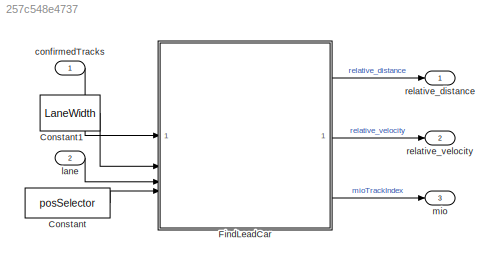
MODEL slx_257c548e4737
KIND model
CONFIG AbsTol = auto
CONFIG EnableMultiTasking = on
CONFIG FixedStep = auto
CONFIG MaxStep = auto
CONFIG MinStep = auto
CONFIG RelTol = 1e-3
CONFIG SampleTimeConstraint = Unconstrained
CONFIG SolverName = FixedStepDiscrete
CONFIG StartTime = 0.0
CONFIG StopTime = 10.0
BLOCK [Constant] Constant
  Value = posSelector
BLOCK [Constant] Constant1
  Value = LaneWidth
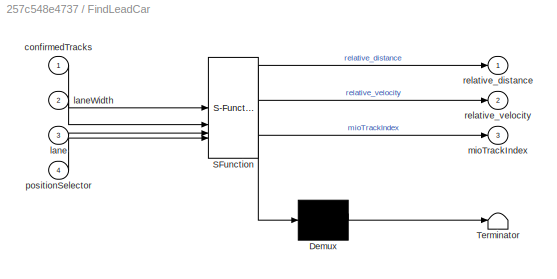
BLOCK [SubSystem] FindLeadCar
  ErrorFcn = Stateflow.Translate.translate
  PermitHierarchicalResolution = ExplicitOnly
  SFBlockType = MATLAB Function
  TreatAsAtomicUnit = on
BLOCK [Demux] FindLeadCar/ Demux 
  Outputs = 1
BLOCK [S-Function] FindLeadCar/ SFunction 
  EnableBusSupport = off
  FunctionName = sf_sfun
  PortCounts = [4 4]
  SFcnIsStateOwnerBlock = off
  SFunctionDeploymentMode = off
  Tag = Stateflow S-Function 1
BLOCK [Terminator] FindLeadCar/ Terminator 
BLOCK [Inport] FindLeadCar/confirmedTracks
BLOCK [Inport] FindLeadCar/lane
  Port = 3
BLOCK [Inport] FindLeadCar/laneWidth
  Port = 2
BLOCK [Outport] FindLeadCar/mioTrackIndex
  Port = 3
  VectorParamsAs1DForOutWhenUnconnected = off
BLOCK [Inport] FindLeadCar/positionSelector
  Port = 4
BLOCK [Outport] FindLeadCar/relative_distance
  VectorParamsAs1DForOutWhenUnconnected = off
BLOCK [Outport] FindLeadCar/relative_velocity
  Port = 2
  VectorParamsAs1DForOutWhenUnconnected = off
BLOCK [Inport] confirmedTracks
  BusOutputAsStruct = on
  OutDataTypeStr = Bus: BusMultiObjectTracker
  PortDimensions = [1 1]
  SampleTime = Ts
BLOCK [Inport] lane
  BusOutputAsStruct = on
  OutDataTypeStr = Bus: LaneSensor
  Port = 2
  PortDimensions = [1 1]
  SampleTime = Ts
BLOCK [Outport] mio
  OutDataTypeStr = double
  Port = 3
  PortDimensions = 1
  SampleTime = Ts
  SamplingMode = Sample based
  SignalType = real
BLOCK [Outport] relative_distance
  OutDataTypeStr = double
  PortDimensions = 1
  SampleTime = Ts
  SamplingMode = Sample based
  SignalType = real
BLOCK [Outport] relative_velocity
  OutDataTypeStr = double
  Port = 2
  PortDimensions = 1
  SampleTime = Ts
  SamplingMode = Sample based
  SignalType = real
LINE Constant1:1 -> FindLeadCar:2
LINE Constant:1 -> FindLeadCar:4
LINE FindLeadCar:1 -> relative_distance:1
LINE FindLeadCar:2 -> relative_velocity:1
LINE FindLeadCar:3 -> mio:1
LINE confirmedTracks:1 -> FindLeadCar:1
LINE lane:1 -> FindLeadCar:3
CHART FindLeadCar states=1 transitions=1
  STATE_LABEL 'eML_blk_kernel()'
  STATE_LABEL "SCRIPT:\n    function [relative_distance,relative_velocity,mioTrackIndex] = findLeadCar(confirmedTracks, laneWidth, lane, positionSelector)\n% This function finds the lead car: a car in front of the ego car that\n% satisfies all the criteria below:\n% * Within the ego car's lane.\n% * In front of the ego car.\n% * Closest to the ego car.\n\n% Note: If you change state definition, change the following:\n%  ...<+2075ch>"
CHART  states=0 transitions=0
